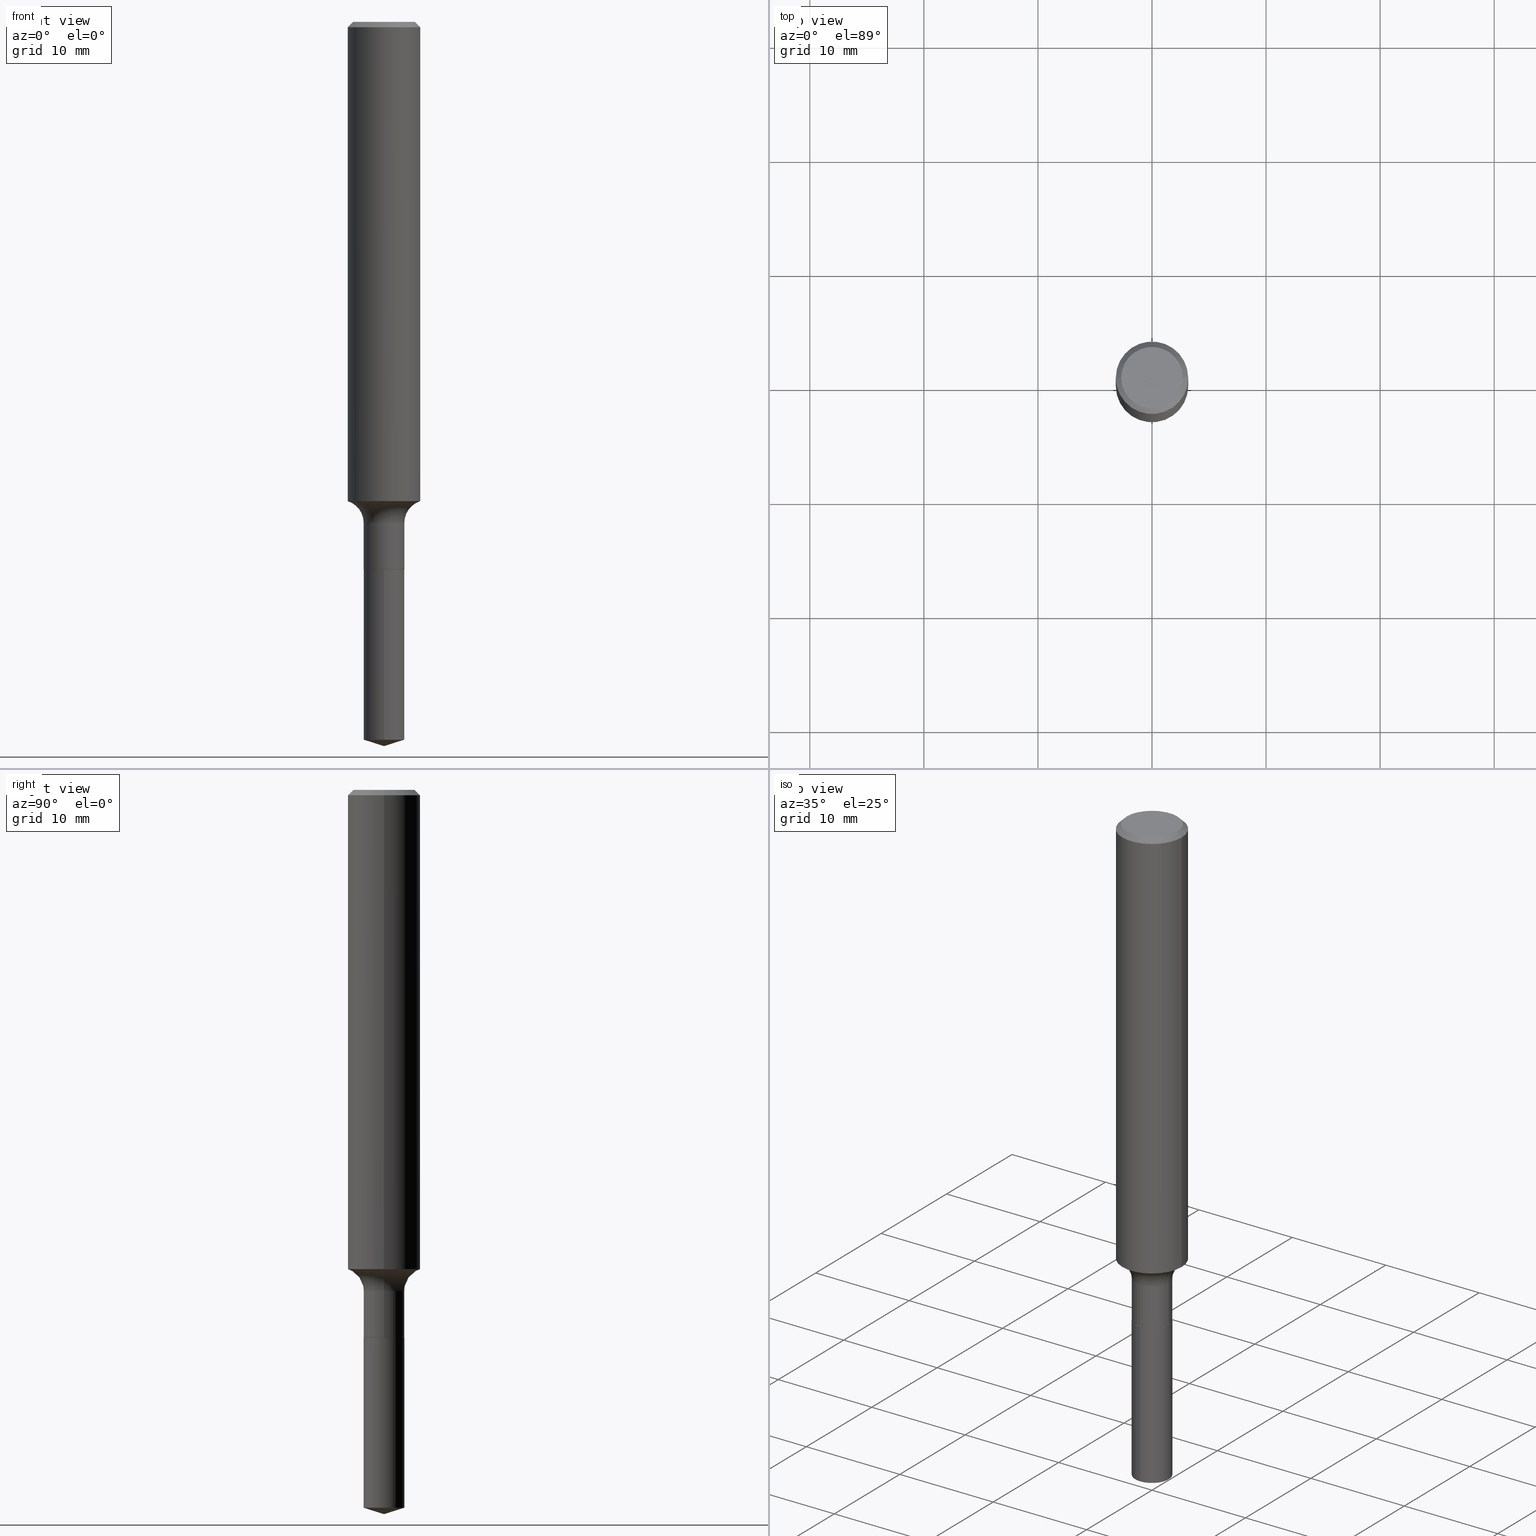
[diagram: canonical four-view strip — front | top / right | iso, engineering-drawing reading convention]
A machine part, canonical four-view strip (front | top / right | iso — engineering-drawing reading convention). The complete STEP part file that produces these views, byte-faithful:
ISO-10303-21;
HEADER;
FILE_DESCRIPTION (( 'STEP AP203' ),
    '1' );
FILE_NAME ('50006.STEP',
    '2024-04-19T12:44:53',
    ( '' ),
    ( '' ),
    'SwSTEP 2.0',
    'SolidWorks 2023',
    '' );
FILE_SCHEMA (( 'CONFIG_CONTROL_DESIGN' ));
ENDSEC;

DATA;
#1 = CARTESIAN_POINT ( 'NONE',  ( -0.07025000000000000688, 4.991562718714704295E-16, -3.455551900904071661E-30 ) ) ;
#2 = EDGE_CURVE ( 'NONE', #221, #240, #169, .T. ) ;
#3 = VECTOR ( 'NONE', #189, 39.37007874015747433 ) ;
#4 = DIRECTION ( 'NONE',  ( 1.000000000000000000, -6.982962677686266711E-15, 0.000000000000000000 ) ) ;
#5 = EDGE_LOOP ( 'NONE', ( #245, #117 ) ) ;
#6 = CARTESIAN_POINT ( 'NONE',  ( 4.623158778093001238E-29, -6.600645471082967684E-15, -1.890500000000000291 ) ) ;
#7 = ADVANCED_FACE ( 'NONE', ( #174 ), #314, .T. ) ;
#8 = EDGE_LOOP ( 'NONE', ( #269, #306, #303, #356 ) ) ;
#9 = DIRECTION ( 'NONE',  ( -2.445468806185136877E-29, 3.491481338843145188E-15, 1.000000000000000000 ) ) ;
#10 = ORIENTED_EDGE ( 'NONE', *, *, #365, .T. ) ;
#11 = DIRECTION ( 'NONE',  ( 1.000000000000000000, -6.982962677686260400E-15, 0.000000000000000000 ) ) ;
#12 = EDGE_LOOP ( 'NONE', ( #407, #362, #201, #440 ) ) ;
#13 = CARTESIAN_POINT ( 'NONE',  ( 0.000000000000000000, 0.000000000000000000, 0.000000000000000000 ) ) ;
#14 = CALENDAR_DATE ( 2024, 19, 4 ) ;
#15 = ORIENTED_EDGE ( 'NONE', *, *, #335, .F. ) ;
#16 = EDGE_CURVE ( 'NONE', #392, #45, #216, .T. ) ;
#17 = VECTOR ( 'NONE', #292, 39.37007874015748143 ) ;
#18 = VERTEX_POINT ( 'NONE', #50 ) ;
#19 = AXIS2_PLACEMENT_3D ( 'NONE', #419, #179, #102 ) ;
#20 = CALENDAR_DATE ( 2024, 19, 4 ) ;
#21 = PLANE ( 'NONE',  #368 ) ;
#22 = DIRECTION ( 'NONE',  ( 1.000000000000000000, -6.982962677686267499E-15, 0.000000000000000000 ) ) ;
#23 = FACE_OUTER_BOUND ( 'NONE', #194, .T. ) ;
#24 = CARTESIAN_POINT ( 'NONE',  ( 6.113452958343388287E-29, -8.729017049370880007E-15, -2.500000000000000000 ) ) ;
#25 = CC_DESIGN_DATE_AND_TIME_ASSIGNMENT ( #479, #137, ( #129 ) ) ;
#26 = AXIS2_PLACEMENT_3D ( 'NONE', #391, #234, #230 ) ;
#27 = SECURITY_CLASSIFICATION_LEVEL ( 'unclassified' ) ;
#28 = FACE_OUTER_BOUND ( 'NONE', #8, .T. ) ;
#29 = DIRECTION ( 'NONE',  ( 1.000000000000000000, -6.982962677686266711E-15, 0.000000000000000000 ) ) ;
#30 = FACE_OUTER_BOUND ( 'NONE', #373, .T. ) ;
#31 = TOROIDAL_SURFACE ( 'NONE', #317, 0.1482499999999999929, 0.07799999999999995826 ) ;
#32 = PERSON_AND_ORGANIZATION ( #486, #168 ) ;
#33 = CYLINDRICAL_SURFACE ( 'NONE', #349, 0.07025000000000000688 ) ;
#34 = CARTESIAN_POINT ( 'NONE',  ( 4.623158778093001238E-29, -6.600645471082967684E-15, -1.890500000000000291 ) ) ;
#35 = ORIENTED_EDGE ( 'NONE', *, *, #335, .T. ) ;
#36 = EDGE_CURVE ( 'NONE', #469, #271, #101, .T. ) ;
#37 = CIRCLE ( 'NONE', #295, 0.1250000000000000000 ) ;
#38 = CARTESIAN_POINT ( 'NONE',  ( -4.905531281073995099E-16, -0.07025000000000863887, -2.477850260081251754 ) ) ;
#39 = VERTEX_POINT ( 'NONE', #319 ) ;
#40 = FACE_OUTER_BOUND ( 'NONE', #75, .T. ) ;
#41 = EDGE_LOOP ( 'NONE', ( #322, #308, #428, #330 ) ) ;
#42 = AXIS2_PLACEMENT_3D ( 'NONE', #209, #480, #130 ) ;
#43 = DIRECTION ( 'NONE',  ( 1.000000000000000000, -6.982962677686269077E-15, 4.883557194083114583E-29 ) ) ;
#44 = ORIENTED_EDGE ( 'NONE', *, *, #267, .F. ) ;
#45 = VERTEX_POINT ( 'NONE', #442 ) ;
#46 = APPROVAL_STATUS ( 'not_yet_approved' ) ;
#47 = LINE ( 'NONE', #211, #321 ) ;
#48 = CIRCLE ( 'NONE', #111, 0.07025000000000000688 ) ;
#49 =( CONVERSION_BASED_UNIT ( 'INCH', #74 ) LENGTH_UNIT ( ) NAMED_UNIT ( #84 ) );
#50 = CARTESIAN_POINT ( 'NONE',  ( 0.07025000000000002076, -7.089452858521007616E-15, -1.890000000000000346 ) ) ;
#51 = AXIS2_PLACEMENT_3D ( 'NONE', #333, #95, #489 ) ;
#52 = FACE_OUTER_BOUND ( 'NONE', #5, .T. ) ;
#53 = CIRCLE ( 'NONE', #378, 0.07025000000000000688 ) ;
#54 = CIRCLE ( 'NONE', #454, 0.06975000000000000644 ) ;
#55 =( LENGTH_UNIT ( ) NAMED_UNIT ( * ) SI_UNIT ( $, .METRE. ) );
#56 = CARTESIAN_POINT ( 'NONE',  ( 4.623158778093001238E-29, -6.600645471082967684E-15, -1.890500000000000291 ) ) ;
#57 = CYLINDRICAL_SURFACE ( 'NONE', #134, 0.07025000000000000688 ) ;
#58 = DIRECTION ( 'NONE',  ( -1.000000000000000000, 6.982962677686266711E-15, 0.000000000000000000 ) ) ;
#59 = CARTESIAN_POINT ( 'NONE',  ( 4.585254011597164750E-31, -6.546527510330946532E-17, -0.01875000000000013808 ) ) ;
#60 = CARTESIAN_POINT ( 'NONE',  ( 0.06975000000000000644, -7.087707117851585324E-15, -1.890500000000000291 ) ) ;
#61 = CARTESIAN_POINT ( 'NONE',  ( 0.000000000000000000, 0.000000000000000000, 0.000000000000000000 ) ) ;
#62 = CARTESIAN_POINT ( 'NONE',  ( 4.585254011597164750E-31, -6.546527510330946532E-17, -0.01875000000000013808 ) ) ;
#63 = ORIENTED_EDGE ( 'NONE', *, *, #2, .F. ) ;
#64 = CARTESIAN_POINT ( 'NONE',  ( 4.585254011597164750E-31, -6.546527510330946532E-17, -0.01875000000000013808 ) ) ;
#65 = ORIENTED_EDGE ( 'NONE', *, *, #483, .F. ) ;
#66 = CARTESIAN_POINT ( 'NONE',  ( 4.623158778093001238E-29, -6.600645471082967684E-15, -1.890500000000000291 ) ) ;
#67 = ORIENTED_EDGE ( 'NONE', *, *, #290, .F. ) ;
#68 = AXIS2_PLACEMENT_3D ( 'NONE', #6, #228, #69 ) ;
#69 = DIRECTION ( 'NONE',  ( 6.982962677686265922E-15, 1.000000000000000000, -3.491606819748351924E-15 ) ) ;
#70 = ORIENTED_EDGE ( 'NONE', *, *, #247, .T. ) ;
#71 = CC_DESIGN_PERSON_AND_ORGANIZATION_ASSIGNMENT ( #332, #252, ( #467 ) ) ;
#72 = DIRECTION ( 'NONE',  ( 1.000000000000000000, -6.982962677686266711E-15, 0.000000000000000000 ) ) ;
#73 = ORIENTED_EDGE ( 'NONE', *, *, #198, .F. ) ;
#74 = LENGTH_MEASURE_WITH_UNIT ( LENGTH_MEASURE( 0.02539999999999999897 ), #55 );
#75 = EDGE_LOOP ( 'NONE', ( #155, #167, #231, #397 ) ) ;
#76 = EDGE_CURVE ( 'NONE', #351, #492, #47, .T. ) ;
#77 = PERSON_AND_ORGANIZATION ( #486, #168 ) ;
#78 = DIRECTION ( 'NONE',  ( -2.445468806185136597E-29, 3.491481338843145583E-15, 1.000000000000000000 ) ) ;
#79 = CARTESIAN_POINT ( 'NONE',  ( 0.1250000000000001110, -8.728703347107841277E-16, 6.095220969744924646E-30 ) ) ;
#80 = UNCERTAINTY_MEASURE_WITH_UNIT (LENGTH_MEASURE( 1.000000000000000082E-05 ), #49, 'distance_accuracy_value', 'NONE');
#81 = VECTOR ( 'NONE', #280, 39.37007874015748143 ) ;
#82 = APPLICATION_PROTOCOL_DEFINITION ( 'international standard', 'config_control_design', 1994, #445 ) ;
#83 = ORIENTED_EDGE ( 'NONE', *, *, #205, .T. ) ;
#84 = DIMENSIONAL_EXPONENTS ( 1.000000000000000000, 0.000000000000000000, 0.000000000000000000, 0.000000000000000000, 0.000000000000000000, 0.000000000000000000, 0.000000000000000000 ) ;
#85 = DIRECTION ( 'NONE',  ( -2.445468806185136597E-29, 3.491481338843145583E-15, 1.000000000000000000 ) ) ;
#86 = DIRECTION ( 'NONE',  ( -1.000000000000000000, 6.982962677686265922E-15, -4.876176775795935793E-29 ) ) ;
#87 = CC_DESIGN_APPROVAL ( #382, ( #129 ) ) ;
#88 = PRODUCT_DEFINITION_SHAPE ( 'NONE', 'NONE',  #129 ) ;
#89 = ADVANCED_FACE ( 'NONE', ( #52 ), #21, .F. ) ;
#90 = ORIENTED_EDGE ( 'NONE', *, *, #290, .T. ) ;
#91 = CALENDAR_DATE ( 2024, 19, 4 ) ;
#92 = FACE_OUTER_BOUND ( 'NONE', #462, .T. ) ;
#93 = ADVANCED_FACE ( 'NONE', ( #172 ), #126, .F. ) ;
#94 = PERSON_AND_ORGANIZATION ( #486, #168 ) ;
#95 = DIRECTION ( 'NONE',  ( -2.445468806185136597E-29, 3.491481338843145583E-15, 1.000000000000000000 ) ) ;
#96 = ORIENTED_EDGE ( 'NONE', *, *, #359, .F. ) ;
#97 = AXIS2_PLACEMENT_3D ( 'NONE', #466, #307, #305 ) ;
#98 = DATE_AND_TIME ( #412, #161 ) ;
#99 = CARTESIAN_POINT ( 'NONE',  ( 0.1062499999999999972, -8.259777185439879685E-16, 7.182553477054055401E-19 ) ) ;
#100 = ADVANCED_FACE ( 'NONE', ( #23 ), #133, .T. ) ;
#101 = CIRCLE ( 'NONE', #367, 0.07024999999999999301 ) ;
#102 = DIRECTION ( 'NONE',  ( 1.000000000000000000, -6.982962677686266711E-15, 4.876153107228683844E-29 ) ) ;
#103 = CARTESIAN_POINT ( 'NONE',  ( 0.06975000000000000644, -7.087707117851585324E-15, -1.890500000000000291 ) ) ;
#104 = EDGE_LOOP ( 'NONE', ( #285, #300 ) ) ;
#105 = ADVANCED_FACE ( 'NONE', ( #409 ), #57, .T. ) ;
#106 = CC_DESIGN_PERSON_AND_ORGANIZATION_ASSIGNMENT ( #171, #399, ( #129 ) ) ;
#107 = AXIS2_PLACEMENT_3D ( 'NONE', #268, #151, #420 ) ;
#108 = DIRECTION ( 'NONE',  ( -0.7071067811866259545, 7.493145998870638150E-15, 0.7071067811864690800 ) ) ;
#109 = EDGE_CURVE ( 'NONE', #157, #45, #360, .T. ) ;
#110 = ORIENTED_EDGE ( 'NONE', *, *, #76, .T. ) ;
#111 = AXIS2_PLACEMENT_3D ( 'NONE', #182, #331, #256 ) ;
#112 = DIRECTION ( 'NONE',  ( -2.445468806185136877E-29, 3.491481338843145188E-15, 1.000000000000000000 ) ) ;
#113 = ORIENTED_EDGE ( 'NONE', *, *, #483, .T. ) ;
#114 = VECTOR ( 'NONE', #394, 39.37007874015748143 ) ;
#115 = EDGE_CURVE ( 'NONE', #39, #18, #415, .T. ) ;
#116 = PLANE ( 'NONE',  #68 ) ;
#117 = ORIENTED_EDGE ( 'NONE', *, *, #429, .T. ) ;
#118 = AXIS2_PLACEMENT_3D ( 'NONE', #484, #328, #455 ) ;
#119 = AXIS2_PLACEMENT_3D ( 'NONE', #477, #401, #315 ) ;
#120 = DIRECTION ( 'NONE',  ( -2.445468806185136597E-29, 3.491481338843145583E-15, 1.000000000000000000 ) ) ;
#121 = EDGE_LOOP ( 'NONE', ( #471, #35, #338 ) ) ;
#122 = DIRECTION ( 'NONE',  ( 1.000000000000000000, -6.982962677686266711E-15, 0.000000000000000000 ) ) ;
#123 = CIRCLE ( 'NONE', #304, 0.07799999999999995826 ) ;
#124 = ORIENTED_EDGE ( 'NONE', *, *, #463, .T. ) ;
#125 = APPLICATION_PROTOCOL_DEFINITION ( 'international standard', 'config_control_design', 1994, #436 ) ;
#126 = PLANE ( 'NONE',  #408 ) ;
#127 = DIRECTION ( 'NONE',  ( -2.445468806185136597E-29, 3.491481338843145583E-15, 1.000000000000000000 ) ) ;
#128 = APPROVAL_PERSON_ORGANIZATION ( #77, #382, #242 ) ;
#129 = PRODUCT_DEFINITION ( 'UNKNOWN', '', #186, #294 ) ;
#130 = DIRECTION ( 'NONE',  ( -6.982962677686265922E-15, -1.000000000000000000, 3.888751592404644901E-15 ) ) ;
#131 = EDGE_CURVE ( 'NONE', #18, #39, #312, .T. ) ;
#132 = CARTESIAN_POINT ( 'NONE',  ( 6.059454052123995684E-29, -8.651441644763633332E-15, -2.477850260081251754 ) ) ;
#133 = CYLINDRICAL_SURFACE ( 'NONE', #346, 0.1250000000000001110 ) ;
#134 = AXIS2_PLACEMENT_3D ( 'NONE', #13, #78, #207 ) ;
#135 = CONICAL_SURFACE ( 'NONE', #146, 0.06975000000000000644, 0.7853981633975591903 ) ;
#136 = VERTEX_POINT ( 'NONE', #103 ) ;
#137 = DATE_TIME_ROLE ( 'creation_date' ) ;
#138 = CARTESIAN_POINT ( 'NONE',  ( 4.991562718715165778E-16, 0.07024999999999340106, -1.890500000000000513 ) ) ;
#139 = CONICAL_SURFACE ( 'NONE', #97, 0.1250000000000000000, 0.7853981633974447263 ) ;
#140 = DIRECTION ( 'NONE',  ( -0.7071067811865450192, 2.468850131082230634E-15, -0.7071067811865500152 ) ) ;
#141 = CARTESIAN_POINT ( 'NONE',  ( 4.623158778093001238E-29, -6.600645471082967684E-15, -1.890500000000000291 ) ) ;
#142 = ORIENTED_EDGE ( 'NONE', *, *, #432, .T. ) ;
#143 = VECTOR ( 'NONE', #140, 39.37007874015748143 ) ;
#144 = CARTESIAN_POINT ( 'NONE',  ( 0.1482499999999999929, -7.071646303692904335E-15, -1.728900000000000325 ) ) ;
#145 = AXIS2_PLACEMENT_3D ( 'NONE', #34, #190, #4 ) ;
#146 = AXIS2_PLACEMENT_3D ( 'NONE', #141, #452, #72 ) ;
#147 = CARTESIAN_POINT ( 'NONE',  ( 4.621936043689908997E-29, -6.598899730413546969E-15, -1.890000000000000346 ) ) ;
#148 = DATE_TIME_ROLE ( 'classification_date' ) ;
#149 = DIRECTION ( 'NONE',  ( -2.445468806185136597E-29, 3.491481338843145583E-15, 1.000000000000000000 ) ) ;
#150 = APPROVAL ( #46, 'UNSPECIFIED' ) ;
#151 = DIRECTION ( 'NONE',  ( -2.445381183337354867E-29, 3.491606819748351924E-15, 1.000000000000000000 ) ) ;
#152 = ORIENTED_EDGE ( 'NONE', *, *, #36, .F. ) ;
#153 = VECTOR ( 'NONE', #112, 39.37007874015748143 ) ;
#154 = LINE ( 'NONE', #461, #153 ) ;
#155 = ORIENTED_EDGE ( 'NONE', *, *, #267, .T. ) ;
#156 = LINE ( 'NONE', #1, #334 ) ;
#157 = VERTEX_POINT ( 'NONE', #99 ) ;
#158 = CARTESIAN_POINT ( 'NONE',  ( 0.1250000000000001388, -6.649336746390085607E-15, -1.654445735515015947 ) ) ;
#159 = MANIFOLD_SOLID_BREP ( 'Body-Move/Copy2[1]', #188 ) ;
#160 = ORIENTED_EDGE ( 'NONE', *, *, #115, .F. ) ;
#161 = LOCAL_TIME ( 8, 44, 53.00000000000000000, #258 ) ;
#162 = CARTESIAN_POINT ( 'NONE',  ( 6.113452958343388287E-29, -8.729017049370880007E-15, -2.500000000000000000 ) ) ;
#163 = VERTEX_POINT ( 'NONE', #24 ) ;
#164 = DIRECTION ( 'NONE',  ( 1.000000000000000000, -6.982962677686265922E-15, 4.876176775795935793E-29 ) ) ;
#165 = EDGE_CURVE ( 'NONE', #400, #45, #446, .T. ) ;
#166 = DATE_AND_TIME ( #14, #192 ) ;
#167 = ORIENTED_EDGE ( 'NONE', *, *, #2, .T. ) ;
#168 = ORGANIZATION ( 'UNSPECIFIED', 'UNSPECIFIED', '' ) ;
#169 = LINE ( 'NONE', #138, #81 ) ;
#170 = EDGE_CURVE ( 'NONE', #392, #271, #357, .T. ) ;
#171 = PERSON_AND_ORGANIZATION ( #486, #168 ) ;
#172 = FACE_OUTER_BOUND ( 'NONE', #104, .T. ) ;
#173 = APPROVAL_DATE_TIME ( #366, #382 ) ;
#174 = FACE_OUTER_BOUND ( 'NONE', #311, .T. ) ;
#175 = DIRECTION ( 'NONE',  ( 1.000000000000000000, -6.982962677686269077E-15, 4.883557194083114583E-29 ) ) ;
#176 = AXIS2_PLACEMENT_3D ( 'NONE', #301, #196, #232 ) ;
#177 = CIRCLE ( 'NONE', #251, 0.07025000000000000688 ) ;
#178 = SHAPE_DEFINITION_REPRESENTATION ( #88, #257 ) ;
#179 = DIRECTION ( 'NONE',  ( -2.445468806185136597E-29, 3.491481338843145583E-15, 1.000000000000000000 ) ) ;
#180 = ORIENTED_EDGE ( 'NONE', *, *, #109, .T. ) ;
#181 = EDGE_CURVE ( 'NONE', #421, #469, #123, .T. ) ;
#182 = CARTESIAN_POINT ( 'NONE',  ( 4.623158778093001238E-29, -6.600645471082967684E-15, -1.890500000000000291 ) ) ;
#183 = AXIS2_PLACEMENT_3D ( 'NONE', #266, #149, #175 ) ;
#184 = CYLINDRICAL_SURFACE ( 'NONE', #51, 0.1250000000000001110 ) ;
#185 = CIRCLE ( 'NONE', #119, 0.1250000000000001943 ) ;
#186 = PRODUCT_DEFINITION_FORMATION_WITH_SPECIFIED_SOURCE ( 'ANY', '', #449, .NOT_KNOWN. ) ;
#187 = CARTESIAN_POINT ( 'NONE',  ( 6.059454052123995684E-29, -8.651441644763633332E-15, -2.477850260081251754 ) ) ;
#188 = CLOSED_SHELL ( 'NONE', ( #293, #398, #225, #7, #384 ) ) ;
#189 = DIRECTION ( 'NONE',  ( 6.776566513254254982E-15, 0.9537169507482283759, 0.3007057995042687337 ) ) ;
#190 = DIRECTION ( 'NONE',  ( -2.445468806185136597E-29, 3.491481338843145583E-15, 1.000000000000000000 ) ) ;
#191 = ORIENTED_EDGE ( 'NONE', *, *, #109, .F. ) ;
#192 = LOCAL_TIME ( 8, 44, 53.00000000000000000, #358 ) ;
#193 = CARTESIAN_POINT ( 'NONE',  ( -0.1250000000000000000, -2.032787423691178108E-15, -0.01875000000000013808 ) ) ;
#194 = EDGE_LOOP ( 'NONE', ( #67, #113, #250, #237 ) ) ;
#195 = AXIS2_PLACEMENT_3D ( 'NONE', #438, #262, #374 ) ;
#196 = DIRECTION ( 'NONE',  ( -2.445381183337354867E-29, 3.491606819748351924E-15, 1.000000000000000000 ) ) ;
#197 = VECTOR ( 'NONE', #444, 39.37007874015748143 ) ;
#198 = EDGE_CURVE ( 'NONE', #240, #492, #48, .T. ) ;
#199 = ORIENTED_EDGE ( 'NONE', *, *, #115, .T. ) ;
#200 = CYLINDRICAL_SURFACE ( 'NONE', #176, 0.07025000000000000688 ) ;
#201 = ORIENTED_EDGE ( 'NONE', *, *, #341, .F. ) ;
#202 = ADVANCED_FACE ( 'NONE', ( #485 ), #375, .F. ) ;
#203 = EDGE_LOOP ( 'NONE', ( #65, #274, #425, #431 ) ) ;
#204 = AXIS2_PLACEMENT_3D ( 'NONE', #59, #381, #58 ) ;
#205 = EDGE_CURVE ( 'NONE', #136, #18, #259, .T. ) ;
#206 = APPROVAL_ROLE ( '' ) ;
#207 = DIRECTION ( 'NONE',  ( 1.000000000000000000, -6.982962677686265922E-15, 4.876176775795935232E-29 ) ) ;
#208 = DIRECTION ( 'NONE',  ( 1.000000000000000000, 0.000000000000000000, 0.000000000000000000 ) ) ;
#209 = CARTESIAN_POINT ( 'NONE',  ( 4.623158778093001238E-29, -6.600645471082967684E-15, -1.890500000000000291 ) ) ;
#210 = APPROVAL_STATUS ( 'not_yet_approved' ) ;
#211 = CARTESIAN_POINT ( 'NONE',  ( -4.905531281074140052E-16, -0.07025000000000659883, -1.890499999999999847 ) ) ;
#212 = CONICAL_SURFACE ( 'NONE', #204, 0.1250000000000000000, 0.7853981633974447263 ) ;
#213 = PERSON_AND_ORGANIZATION ( #486, #168 ) ;
#214 = AXIS2_PLACEMENT_3D ( 'NONE', #62, #291, #29 ) ;
#215 = DIRECTION ( 'NONE',  ( -2.438088387897960049E-29, 3.491481338843145188E-15, 1.000000000000000000 ) ) ;
#216 = LINE ( 'NONE', #79, #197 ) ;
#217 = PERSON_AND_ORGANIZATION ( #486, #168 ) ;
#218 = EDGE_CURVE ( 'NONE', #465, #157, #363, .T. ) ;
#219 = DIRECTION ( 'NONE',  ( -1.000000000000000000, 7.105427357601001859E-15, 0.000000000000000000 ) ) ;
#220 = CIRCLE ( 'NONE', #26, 0.1062499999999999972 ) ;
#221 = VERTEX_POINT ( 'NONE', #417 ) ;
#222 = PERSON_AND_ORGANIZATION_ROLE ( 'creator' ) ;
#223 = DIRECTION ( 'NONE',  ( -6.982962677686266711E-15, -1.000000000000000000, 3.491481338843145583E-15 ) ) ;
#224 = FACE_OUTER_BOUND ( 'NONE', #121, .T. ) ;
#225 = ADVANCED_FACE ( 'NONE', ( #224 ), #418, .T. ) ;
#226 = DIRECTION ( 'NONE',  ( -2.445468806185136597E-29, 3.491481338843145583E-15, 1.000000000000000000 ) ) ;
#227 = CC_DESIGN_SECURITY_CLASSIFICATION ( #467, ( #186 ) ) ;
#228 = DIRECTION ( 'NONE',  ( 2.445381183337354586E-29, -3.491606819748351924E-15, -1.000000000000000000 ) ) ;
#229 = AXIS2_PLACEMENT_3D ( 'NONE', #144, #223, #337 ) ;
#230 = DIRECTION ( 'NONE',  ( 1.000000000000000000, -6.982962677686266711E-15, 4.876153107228683844E-29 ) ) ;
#231 = ORIENTED_EDGE ( 'NONE', *, *, #247, .F. ) ;
#232 = DIRECTION ( 'NONE',  ( -6.982962677686265922E-15, -1.000000000000000000, 3.888751592404644901E-15 ) ) ;
#233 = ORIENTED_EDGE ( 'NONE', *, *, #388, .F. ) ;
#234 = DIRECTION ( 'NONE',  ( -2.445468806185136597E-29, 3.491481338843145583E-15, 1.000000000000000000 ) ) ;
#235 = ORIENTED_EDGE ( 'NONE', *, *, #198, .T. ) ;
#236 = LINE ( 'NONE', #383, #114 ) ;
#237 = ORIENTED_EDGE ( 'NONE', *, *, #165, .F. ) ;
#238 = EDGE_CURVE ( 'NONE', #465, #400, #416, .T. ) ;
#239 = PERSON_AND_ORGANIZATION_ROLE ( 'design_owner' ) ;
#240 = VERTEX_POINT ( 'NONE', #377 ) ;
#241 = AXIS2_PLACEMENT_3D ( 'NONE', #313, #127, #22 ) ;
#242 = APPROVAL_ROLE ( '' ) ;
#243 = ORIENTED_EDGE ( 'NONE', *, *, #490, .T. ) ;
#244 = ADVANCED_FACE ( 'NONE', ( #30 ), #184, .T. ) ;
#245 = ORIENTED_EDGE ( 'NONE', *, *, #218, .T. ) ;
#246 = ORIENTED_EDGE ( 'NONE', *, *, #238, .T. ) ;
#247 = EDGE_CURVE ( 'NONE', #492, #240, #53, .T. ) ;
#248 = LOCAL_TIME ( 8, 44, 53.00000000000000000, #379 ) ;
#249 = DIRECTION ( 'NONE',  ( 0.000000000000000000, 0.000000000000000000, 1.000000000000000000 ) ) ;
#250 = ORIENTED_EDGE ( 'NONE', *, *, #16, .T. ) ;
#251 = AXIS2_PLACEMENT_3D ( 'NONE', #187, #297, #457 ) ;
#252 = PERSON_AND_ORGANIZATION_ROLE ( 'classification_officer' ) ;
#253 = DIRECTION ( 'NONE',  ( 1.000000000000000000, -6.982962677686266711E-15, 4.876176775795935232E-29 ) ) ;
#254 = CC_DESIGN_PERSON_AND_ORGANIZATION_ASSIGNMENT ( #94, #327, ( #186 ) ) ;
#255 = APPROVAL_ROLE ( '' ) ;
#256 = DIRECTION ( 'NONE',  ( -6.982962677686265922E-15, -1.000000000000000000, 3.888751592404644901E-15 ) ) ;
#257 = ADVANCED_BREP_SHAPE_REPRESENTATION ( '50006', ( #159, #488, #487 ), #389 ) ;
#258 = COORDINATED_UNIVERSAL_TIME_OFFSET ( 5, 0, .BEHIND. ) ;
#259 = LINE ( 'NONE', #60, #17 ) ;
#260 = VECTOR ( 'NONE', #424, 39.37007874015748143 ) ;
#261 = ADVANCED_FACE ( 'NONE', ( #92 ), #33, .T. ) ;
#262 = DIRECTION ( 'NONE',  ( -2.445468806185136597E-29, 3.491481338843145583E-15, 1.000000000000000000 ) ) ;
#263 = AXIS2_PLACEMENT_3D ( 'NONE', #147, #370, #265 ) ;
#264 = ADVANCED_FACE ( 'NONE', ( #491 ), #212, .T. ) ;
#265 = DIRECTION ( 'NONE',  ( 1.000000000000000000, -6.982962677686272233E-15, 0.000000000000000000 ) ) ;
#266 = CARTESIAN_POINT ( 'NONE',  ( 4.227971019013483248E-29, -6.036422086725915643E-15, -1.728900000000000325 ) ) ;
#267 = EDGE_CURVE ( 'NONE', #351, #221, #177, .T. ) ;
#268 = CARTESIAN_POINT ( 'NONE',  ( -9.016123112835400794E-28, 1.287360555954438732E-13, 36.87007874015748143 ) ) ;
#269 = ORIENTED_EDGE ( 'NONE', *, *, #348, .T. ) ;
#270 = CARTESIAN_POINT ( 'NONE',  ( 6.113787165458209996E-29, -8.728542606068295116E-15, -2.500000000000000000 ) ) ;
#271 = VERTEX_POINT ( 'NONE', #372 ) ;
#272 = ADVANCED_FACE ( 'NONE', ( #28 ), #135, .T. ) ;
#273 = CARTESIAN_POINT ( 'NONE',  ( -0.06975000000000000644, -6.102392685716187544E-15, -1.890500000000000291 ) ) ;
#274 = ORIENTED_EDGE ( 'NONE', *, *, #181, .T. ) ;
#275 = APPROVAL_PERSON_ORGANIZATION ( #288, #150, #206 ) ;
#276 = DIRECTION ( 'NONE',  ( -2.445468806185136597E-29, 3.491481338843145583E-15, 1.000000000000000000 ) ) ;
#277 = ORIENTED_EDGE ( 'NONE', *, *, #426, .T. ) ;
#278 = CARTESIAN_POINT ( 'NONE',  ( -0.06975000000000000644, -6.105041912890297956E-15, -1.890500000000000291 ) ) ;
#279 = ORIENTED_EDGE ( 'NONE', *, *, #439, .T. ) ;
#280 = DIRECTION ( 'NONE',  ( -2.445381183337354867E-29, 3.491606819748351924E-15, 1.000000000000000000 ) ) ;
#281 = CIRCLE ( 'NONE', #145, 0.06975000000000000644 ) ;
#282 = MECHANICAL_CONTEXT ( 'NONE', #445, 'mechanical' ) ;
#283 = DIRECTION ( 'NONE',  ( 0.7071067811865450192, -7.319954787623246579E-15, -0.7071067811865500152 ) ) ;
#284 =( NAMED_UNIT ( * ) SI_UNIT ( $, .STERADIAN. ) SOLID_ANGLE_UNIT ( ) );
#285 = ORIENTED_EDGE ( 'NONE', *, *, #348, .F. ) ;
#286 =( NAMED_UNIT ( * ) PLANE_ANGLE_UNIT ( ) SI_UNIT ( $, .RADIAN. ) );
#287 = CARTESIAN_POINT ( 'NONE',  ( 4.227971019013483248E-29, -6.036422086725915643E-15, -1.728900000000000325 ) ) ;
#288 = PERSON_AND_ORGANIZATION ( #486, #168 ) ;
#289 = DIRECTION ( 'NONE',  ( -2.445468806185136597E-29, 3.491481338843145583E-15, 1.000000000000000000 ) ) ;
#290 = EDGE_CURVE ( 'NONE', #421, #400, #236, .T. ) ;
#291 = DIRECTION ( 'NONE',  ( -2.445468806185136597E-29, 3.491481338843145583E-15, 1.000000000000000000 ) ) ;
#292 = DIRECTION ( 'NONE',  ( 0.7071067811866259545, -2.468850131083078659E-15, 0.7071067811864690800 ) ) ;
#293 = ADVANCED_FACE ( 'NONE', ( #40 ), #200, .T. ) ;
#294 = DESIGN_CONTEXT ( 'detailed design', #436, 'design' ) ;
#295 = AXIS2_PLACEMENT_3D ( 'NONE', #64, #120, #464 ) ;
#296 = CARTESIAN_POINT ( 'NONE',  ( -0.1482499999999999929, -4.983042480961567168E-15, -1.728900000000000325 ) ) ;
#297 = DIRECTION ( 'NONE',  ( -2.445381183337354867E-29, 3.491606819748351924E-15, 1.000000000000000000 ) ) ;
#298 = FACE_OUTER_BOUND ( 'NONE', #364, .T. ) ;
#299 = AXIS2_PLACEMENT_3D ( 'NONE', #66, #85, #433 ) ;
#300 = ORIENTED_EDGE ( 'NONE', *, *, #432, .F. ) ;
#301 = CARTESIAN_POINT ( 'NONE',  ( 4.623158778093001238E-29, -6.600645471082967684E-15, -1.890500000000000291 ) ) ;
#302 = ADVANCED_FACE ( 'NONE', ( #310 ), #31, .F. ) ;
#303 = ORIENTED_EDGE ( 'NONE', *, *, #131, .F. ) ;
#304 = AXIS2_PLACEMENT_3D ( 'NONE', #296, #329, #219 ) ;
#305 = DIRECTION ( 'NONE',  ( -1.000000000000000000, 6.982962677686266711E-15, 0.000000000000000000 ) ) ;
#306 = ORIENTED_EDGE ( 'NONE', *, *, #359, .T. ) ;
#307 = DIRECTION ( 'NONE',  ( 2.445468806185136597E-29, -3.491481338843145583E-15, -1.000000000000000000 ) ) ;
#308 = ORIENTED_EDGE ( 'NONE', *, *, #490, .F. ) ;
#309 = APPROVAL_PERSON_ORGANIZATION ( #217, #376, #255 ) ;
#310 = FACE_OUTER_BOUND ( 'NONE', #41, .T. ) ;
#311 = EDGE_LOOP ( 'NONE', ( #63, #124, #110, #73 ) ) ;
#312 = CIRCLE ( 'NONE', #263, 0.07025000000000002076 ) ;
#313 = CARTESIAN_POINT ( 'NONE',  ( 4.045895437727996647E-29, -5.776466411679300691E-15, -1.654445735515015947 ) ) ;
#314 = CYLINDRICAL_SURFACE ( 'NONE', #42, 0.07025000000000000688 ) ;
#315 = DIRECTION ( 'NONE',  ( 1.000000000000000000, -6.982962677686267499E-15, 0.000000000000000000 ) ) ;
#316 = CARTESIAN_POINT ( 'NONE',  ( 0.1250000000000000000, -9.230275248247509846E-16, -0.01875000000000013808 ) ) ;
#317 = AXIS2_PLACEMENT_3D ( 'NONE', #387, #342, #43 ) ;
#318 = CARTESIAN_POINT ( 'NONE',  ( -4.905531281074140052E-16, -0.07025000000000659883, -1.890499999999999847 ) ) ;
#319 = CARTESIAN_POINT ( 'NONE',  ( -0.07025000000000002076, -5.818504636698260679E-15, -1.890000000000000346 ) ) ;
#320 = DIRECTION ( 'NONE',  ( -2.445381183337354867E-29, 3.491606819748351924E-15, 1.000000000000000000 ) ) ;
#321 = VECTOR ( 'NONE', #476, 39.37007874015748143 ) ;
#322 = ORIENTED_EDGE ( 'NONE', *, *, #181, .F. ) ;
#323 = CLOSED_SHELL ( 'NONE', ( #272, #405, #244, #202, #105, #261, #302, #100, #264, #89, #93, #453 ) ) ;
#324 = CALENDAR_DATE ( 2024, 19, 4 ) ;
#325 = CARTESIAN_POINT ( 'NONE',  ( 0.000000000000000000, 0.000000000000000000, 0.000000000000000000 ) ) ;
#326 = VECTOR ( 'NONE', #108, 39.37007874015748143 ) ;
#327 = PERSON_AND_ORGANIZATION_ROLE ( 'design_supplier' ) ;
#328 = DIRECTION ( 'NONE',  ( -2.445381183337354867E-29, 3.491606819748351924E-15, 1.000000000000000000 ) ) ;
#329 = DIRECTION ( 'NONE',  ( 7.105427357601001859E-15, 1.000000000000000000, -3.491481338843145583E-15 ) ) ;
#330 = ORIENTED_EDGE ( 'NONE', *, *, #341, .T. ) ;
#331 = DIRECTION ( 'NONE',  ( -2.445381183337354867E-29, 3.491606819748351924E-15, 1.000000000000000000 ) ) ;
#332 = PERSON_AND_ORGANIZATION ( #486, #168 ) ;
#333 = CARTESIAN_POINT ( 'NONE',  ( 0.000000000000000000, 0.000000000000000000, 0.000000000000000000 ) ) ;
#334 = VECTOR ( 'NONE', #9, 39.37007874015748143 ) ;
#335 = EDGE_CURVE ( 'NONE', #163, #351, #352, .T. ) ;
#336 = APPROVAL_DATE_TIME ( #98, #376 ) ;
#337 = DIRECTION ( 'NONE',  ( 1.000000000000000000, -6.982962677686261977E-15, 0.000000000000000000 ) ) ;
#338 = ORIENTED_EDGE ( 'NONE', *, *, #463, .F. ) ;
#339 = FACE_OUTER_BOUND ( 'NONE', #390, .T. ) ;
#340 = CC_DESIGN_PERSON_AND_ORGANIZATION_ASSIGNMENT ( #32, #222, ( #186 ) ) ;
#341 = EDGE_CURVE ( 'NONE', #271, #469, #458, .T. ) ;
#342 = DIRECTION ( 'NONE',  ( -2.445468806185136597E-29, 3.491481338843145583E-15, 1.000000000000000000 ) ) ;
#343 = CONICAL_SURFACE ( 'NONE', #299, 0.06975000000000000644, 0.7853981633975591903 ) ;
#344 = ORIENTED_EDGE ( 'NONE', *, *, #16, .F. ) ;
#345 = CARTESIAN_POINT ( 'NONE',  ( -0.1250000000000001388, -4.888287991979174669E-15, -1.654445735515015947 ) ) ;
#346 = AXIS2_PLACEMENT_3D ( 'NONE', #325, #289, #253 ) ;
#347 = ORIENTED_EDGE ( 'NONE', *, *, #426, .F. ) ;
#348 = EDGE_CURVE ( 'NONE', #136, #386, #54, .T. ) ;
#349 = AXIS2_PLACEMENT_3D ( 'NONE', #61, #226, #410 ) ;
#350 = LINE ( 'NONE', #278, #326 ) ;
#351 = VERTEX_POINT ( 'NONE', #38 ) ;
#352 = LINE ( 'NONE', #162, #260 ) ;
#353 = EDGE_LOOP ( 'NONE', ( #191, #395, #246, #460 ) ) ;
#354 = CIRCLE ( 'NONE', #241, 0.1250000000000001943 ) ;
#355 = DIRECTION ( 'NONE',  ( -6.982962677686265922E-15, -1.000000000000000000, 0.000000000000000000 ) ) ;
#356 = ORIENTED_EDGE ( 'NONE', *, *, #205, .F. ) ;
#357 = CIRCLE ( 'NONE', #229, 0.07799999999999995826 ) ;
#358 = COORDINATED_UNIVERSAL_TIME_OFFSET ( 5, 0, .BEHIND. ) ;
#359 = EDGE_CURVE ( 'NONE', #386, #39, #350, .T. ) ;
#360 = LINE ( 'NONE', #316, #393 ) ;
#361 = CARTESIAN_POINT ( 'NONE',  ( -0.1062499999999999972, 7.746724220558198188E-16, 7.182553476946202362E-19 ) ) ;
#362 = ORIENTED_EDGE ( 'NONE', *, *, #388, .T. ) ;
#363 = CIRCLE ( 'NONE', #19, 0.1062499999999999972 ) ;
#364 = EDGE_LOOP ( 'NONE', ( #478, #180, #277, #402 ) ) ;
#365 = EDGE_CURVE ( 'NONE', #163, #221, #430, .T. ) ;
#366 = DATE_AND_TIME ( #20, #371 ) ;
#367 = AXIS2_PLACEMENT_3D ( 'NONE', #287, #434, #404 ) ;
#368 = AXIS2_PLACEMENT_3D ( 'NONE', #369, #472, #86 ) ;
#369 = CARTESIAN_POINT ( 'NONE',  ( -8.782355238379108562E-48, 1.253887571509288664E-33, 3.591276738499616421E-19 ) ) ;
#370 = DIRECTION ( 'NONE',  ( -2.445468806185136597E-29, 3.491481338843145583E-15, 1.000000000000000000 ) ) ;
#371 = LOCAL_TIME ( 8, 44, 53.00000000000000000, #403 ) ;
#372 = CARTESIAN_POINT ( 'NONE',  ( 0.07024999999999999301, -6.526975214833375500E-15, -1.728900000000000325 ) ) ;
#373 = EDGE_LOOP ( 'NONE', ( #243, #90, #347, #344 ) ) ;
#374 = DIRECTION ( 'NONE',  ( 1.000000000000000000, -6.982962677686272233E-15, 0.000000000000000000 ) ) ;
#375 = TOROIDAL_SURFACE ( 'NONE', #183, 0.1482499999999999929, 0.07799999999999995826 ) ;
#376 = APPROVAL ( #447, 'UNSPECIFIED' ) ;
#377 = CARTESIAN_POINT ( 'NONE',  ( 4.991562718715311718E-16, 0.07024999999999341493, -1.890500000000000513 ) ) ;
#378 = AXIS2_PLACEMENT_3D ( 'NONE', #413, #456, #448 ) ;
#379 = COORDINATED_UNIVERSAL_TIME_OFFSET ( 5, 0, .BEHIND. ) ;
#380 = AXIS2_PLACEMENT_3D ( 'NONE', #470, #276, #11 ) ;
#381 = DIRECTION ( 'NONE',  ( 2.445468806185136597E-29, -3.491481338843145583E-15, -1.000000000000000000 ) ) ;
#382 = APPROVAL ( #210, 'UNSPECIFIED' ) ;
#383 = CARTESIAN_POINT ( 'NONE',  ( -0.1250000000000001110, 8.881784197001260212E-16, -6.148668862818637832E-30 ) ) ;
#384 = ADVANCED_FACE ( 'NONE', ( #339 ), #116, .F. ) ;
#385 = CARTESIAN_POINT ( 'NONE',  ( 4.623158778093001238E-29, -6.600645471082967684E-15, -1.890500000000000291 ) ) ;
#386 = VERTEX_POINT ( 'NONE', #273 ) ;
#387 = CARTESIAN_POINT ( 'NONE',  ( 4.227971019013483248E-29, -6.036422086725915643E-15, -1.728900000000000325 ) ) ;
#388 = EDGE_CURVE ( 'NONE', #39, #469, #156, .T. ) ;
#389 =( GEOMETRIC_REPRESENTATION_CONTEXT ( 3 ) GLOBAL_UNCERTAINTY_ASSIGNED_CONTEXT ( ( #80 ) ) GLOBAL_UNIT_ASSIGNED_CONTEXT ( ( #49, #286, #284 ) ) REPRESENTATION_CONTEXT ( 'NONE', 'WORKASPACE' ) );
#390 = EDGE_LOOP ( 'NONE', ( #70, #235 ) ) ;
#391 = CARTESIAN_POINT ( 'NONE',  ( -1.756471047675821712E-47, 2.507775143018577328E-33, 7.182553476999232843E-19 ) ) ;
#392 = VERTEX_POINT ( 'NONE', #158 ) ;
#393 = VECTOR ( 'NONE', #283, 39.37007874015748143 ) ;
#394 = DIRECTION ( 'NONE',  ( -2.445468806185136877E-29, 3.491481338843145188E-15, 1.000000000000000000 ) ) ;
#395 = ORIENTED_EDGE ( 'NONE', *, *, #218, .F. ) ;
#396 = CARTESIAN_POINT ( 'NONE',  ( -0.07024999999999999301, -5.818504636698260679E-15, -1.728900000000000325 ) ) ;
#397 = ORIENTED_EDGE ( 'NONE', *, *, #76, .F. ) ;
#398 = ADVANCED_FACE ( 'NONE', ( #427 ), #435, .T. ) ;
#399 = PERSON_AND_ORGANIZATION_ROLE ( 'creator' ) ;
#400 = VERTEX_POINT ( 'NONE', #193 ) ;
#401 = DIRECTION ( 'NONE',  ( -2.445468806185136597E-29, 3.491481338843145583E-15, 1.000000000000000000 ) ) ;
#402 = ORIENTED_EDGE ( 'NONE', *, *, #238, .F. ) ;
#403 = COORDINATED_UNIVERSAL_TIME_OFFSET ( 5, 0, .BEHIND. ) ;
#404 = DIRECTION ( 'NONE',  ( 1.000000000000000000, -6.982962677686260400E-15, 0.000000000000000000 ) ) ;
#405 = ADVANCED_FACE ( 'NONE', ( #298 ), #139, .T. ) ;
#406 = AXIS2_PLACEMENT_3D ( 'NONE', #132, #320, #355 ) ;
#407 = ORIENTED_EDGE ( 'NONE', *, *, #131, .T. ) ;
#408 = AXIS2_PLACEMENT_3D ( 'NONE', #56, #215, #164 ) ;
#409 = FACE_OUTER_BOUND ( 'NONE', #12, .T. ) ;
#410 = DIRECTION ( 'NONE',  ( 1.000000000000000000, -6.982962677686265922E-15, 4.876176775795935232E-29 ) ) ;
#411 = LOCAL_TIME ( 8, 44, 53.00000000000000000, #437 ) ;
#412 = CALENDAR_DATE ( 2024, 19, 4 ) ;
#413 = CARTESIAN_POINT ( 'NONE',  ( 4.623158778093001238E-29, -6.600645471082967684E-15, -1.890500000000000291 ) ) ;
#414 = CC_DESIGN_PERSON_AND_ORGANIZATION_ASSIGNMENT ( #213, #239, ( #449 ) ) ;
#415 = CIRCLE ( 'NONE', #195, 0.07025000000000002076 ) ;
#416 = LINE ( 'NONE', #481, #143 ) ;
#417 = CARTESIAN_POINT ( 'NONE',  ( 4.991562718715308760E-16, 0.07024999999999133327, -2.477850260081251754 ) ) ;
#418 = CONICAL_SURFACE ( 'NONE', #118, 124.8659371009143797, 1.265363707695890128 ) ;
#419 = CARTESIAN_POINT ( 'NONE',  ( -1.756471047675821712E-47, 2.507775143018577328E-33, 7.182553476999232843E-19 ) ) ;
#420 = DIRECTION ( 'NONE',  ( -6.982962677686267499E-15, -1.000000000000000000, 3.500519750498723759E-15 ) ) ;
#421 = VERTEX_POINT ( 'NONE', #345 ) ;
#422 = FACE_OUTER_BOUND ( 'NONE', #474, .T. ) ;
#423 = EDGE_LOOP ( 'NONE', ( #15, #10, #44 ) ) ;
#424 = DIRECTION ( 'NONE',  ( -6.659769872151628144E-15, -0.9537169507482261555, 0.3007057995042753396 ) ) ;
#425 = ORIENTED_EDGE ( 'NONE', *, *, #36, .T. ) ;
#426 = EDGE_CURVE ( 'NONE', #45, #400, #37, .T. ) ;
#427 = FACE_OUTER_BOUND ( 'NONE', #423, .T. ) ;
#428 = ORIENTED_EDGE ( 'NONE', *, *, #170, .T. ) ;
#429 = EDGE_CURVE ( 'NONE', #157, #465, #220, .T. ) ;
#430 = LINE ( 'NONE', #270, #3 ) ;
#431 = ORIENTED_EDGE ( 'NONE', *, *, #170, .F. ) ;
#432 = EDGE_CURVE ( 'NONE', #386, #136, #281, .T. ) ;
#433 = DIRECTION ( 'NONE',  ( 1.000000000000000000, -6.982962677686266711E-15, 0.000000000000000000 ) ) ;
#434 = DIRECTION ( 'NONE',  ( -2.445468806185136597E-29, 3.491481338843145583E-15, 1.000000000000000000 ) ) ;
#435 = CONICAL_SURFACE ( 'NONE', #107, 124.8659371009143797, 1.265363707695890128 ) ;
#436 = APPLICATION_CONTEXT ( 'configuration controlled 3d designs of mechanical parts and assemblies' ) ;
#437 = COORDINATED_UNIVERSAL_TIME_OFFSET ( 5, 0, .BEHIND. ) ;
#438 = CARTESIAN_POINT ( 'NONE',  ( 4.621936043689908997E-29, -6.598899730413546969E-15, -1.890000000000000346 ) ) ;
#439 = EDGE_CURVE ( 'NONE', #18, #271, #154, .T. ) ;
#440 = ORIENTED_EDGE ( 'NONE', *, *, #439, .F. ) ;
#441 = CARTESIAN_POINT ( 'NONE',  ( 0.000000000000000000, 0.000000000000000000, 0.000000000000000000 ) ) ;
#442 = CARTESIAN_POINT ( 'NONE',  ( 0.1250000000000000000, -9.383356098140928781E-16, -0.01875000000000013808 ) ) ;
#443 = CC_DESIGN_APPROVAL ( #376, ( #467 ) ) ;
#444 = DIRECTION ( 'NONE',  ( -2.445468806185136877E-29, 3.491481338843145188E-15, 1.000000000000000000 ) ) ;
#445 = APPLICATION_CONTEXT ( 'configuration controlled 3d designs of mechanical parts and assemblies' ) ;
#446 = CIRCLE ( 'NONE', #214, 0.1250000000000000000 ) ;
#447 = APPROVAL_STATUS ( 'not_yet_approved' ) ;
#448 = DIRECTION ( 'NONE',  ( -6.982962677686265922E-15, -1.000000000000000000, 3.888751592404644901E-15 ) ) ;
#449 = PRODUCT ( '50006', '50006', '', ( #282 ) ) ;
#450 = PRODUCT_RELATED_PRODUCT_CATEGORY ( 'detail', '', ( #449 ) ) ;
#451 = DATE_AND_TIME ( #91, #248 ) ;
#452 = DIRECTION ( 'NONE',  ( -2.445468806185136597E-29, 3.491481338843145583E-15, 1.000000000000000000 ) ) ;
#453 = ADVANCED_FACE ( 'NONE', ( #422 ), #343, .T. ) ;
#454 = AXIS2_PLACEMENT_3D ( 'NONE', #385, #459, #122 ) ;
#455 = DIRECTION ( 'NONE',  ( -6.982962677686267499E-15, -1.000000000000000000, 3.500519750498723759E-15 ) ) ;
#456 = DIRECTION ( 'NONE',  ( -2.445381183337354867E-29, 3.491606819748351924E-15, 1.000000000000000000 ) ) ;
#457 = DIRECTION ( 'NONE',  ( -6.982962677686265922E-15, -1.000000000000000000, 0.000000000000000000 ) ) ;
#458 = CIRCLE ( 'NONE', #380, 0.07024999999999999301 ) ;
#459 = DIRECTION ( 'NONE',  ( -2.445468806185136597E-29, 3.491481338843145583E-15, 1.000000000000000000 ) ) ;
#460 = ORIENTED_EDGE ( 'NONE', *, *, #165, .T. ) ;
#461 = CARTESIAN_POINT ( 'NONE',  ( 0.07025000000000000688, -4.905531281074602522E-16, 3.425514184996644866E-30 ) ) ;
#462 = EDGE_LOOP ( 'NONE', ( #233, #199, #279, #152 ) ) ;
#463 = EDGE_CURVE ( 'NONE', #221, #351, #475, .T. ) ;
#464 = DIRECTION ( 'NONE',  ( 1.000000000000000000, -6.982962677686266711E-15, 0.000000000000000000 ) ) ;
#465 = VERTEX_POINT ( 'NONE', #361 ) ;
#466 = CARTESIAN_POINT ( 'NONE',  ( 4.585254011597164750E-31, -6.546527510330946532E-17, -0.01875000000000013808 ) ) ;
#467 = SECURITY_CLASSIFICATION ( '', '', #27 ) ;
#468 = CC_DESIGN_APPROVAL ( #150, ( #186 ) ) ;
#469 = VERTEX_POINT ( 'NONE', #396 ) ;
#470 = CARTESIAN_POINT ( 'NONE',  ( 4.227971019013483248E-29, -6.036422086725915643E-15, -1.728900000000000325 ) ) ;
#471 = ORIENTED_EDGE ( 'NONE', *, *, #365, .F. ) ;
#472 = DIRECTION ( 'NONE',  ( 2.438088387897960049E-29, -3.491481338843145188E-15, -1.000000000000000000 ) ) ;
#473 = APPROVAL_DATE_TIME ( #166, #150 ) ;
#474 = EDGE_LOOP ( 'NONE', ( #96, #142, #83, #160 ) ) ;
#475 = CIRCLE ( 'NONE', #406, 0.07025000000000000688 ) ;
#476 = DIRECTION ( 'NONE',  ( -2.445381183337354867E-29, 3.491606819748351924E-15, 1.000000000000000000 ) ) ;
#477 = CARTESIAN_POINT ( 'NONE',  ( 4.045895437727996647E-29, -5.776466411679300691E-15, -1.654445735515015947 ) ) ;
#478 = ORIENTED_EDGE ( 'NONE', *, *, #429, .F. ) ;
#479 = DATE_AND_TIME ( #324, #411 ) ;
#480 = DIRECTION ( 'NONE',  ( -2.445381183337354867E-29, 3.491606819748351924E-15, 1.000000000000000000 ) ) ;
#481 = CARTESIAN_POINT ( 'NONE',  ( -0.1250000000000000000, 8.074050596074738982E-16, -0.01875000000000013808 ) ) ;
#482 = CC_DESIGN_DATE_AND_TIME_ASSIGNMENT ( #451, #148, ( #467 ) ) ;
#483 = EDGE_CURVE ( 'NONE', #421, #392, #354, .T. ) ;
#484 = CARTESIAN_POINT ( 'NONE',  ( -9.016123112835400794E-28, 1.287360555954438732E-13, 36.87007874015748143 ) ) ;
#485 = FACE_OUTER_BOUND ( 'NONE', #203, .T. ) ;
#486 = PERSON ( 'UNSPECIFIED', 'UNSPECIFIED', 'UNSPECIFIED', ('UNSPECIFIED'), ('UNSPECIFIED'), ('UNSPECIFIED') ) ;
#487 = AXIS2_PLACEMENT_3D ( 'NONE', #441, #249, #208 ) ;
#488 = MANIFOLD_SOLID_BREP ( 'Body-Move/Copy2[2]', #323 ) ;
#489 = DIRECTION ( 'NONE',  ( 1.000000000000000000, -6.982962677686266711E-15, 4.876176775795935232E-29 ) ) ;
#490 = EDGE_CURVE ( 'NONE', #392, #421, #185, .T. ) ;
#491 = FACE_OUTER_BOUND ( 'NONE', #353, .T. ) ;
#492 = VERTEX_POINT ( 'NONE', #318 ) ;
ENDSEC;
END-ISO-10303-21;
